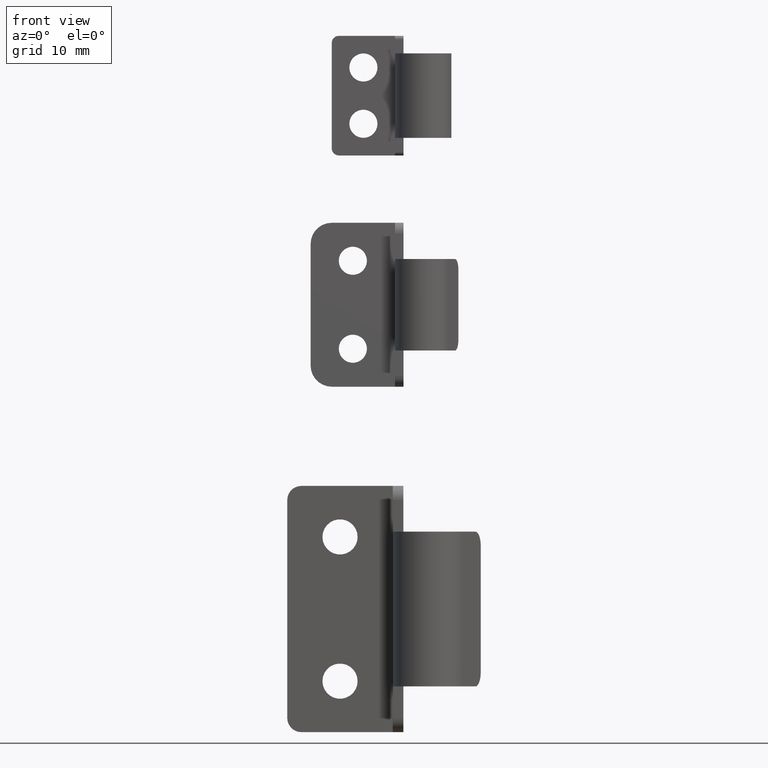
[diagram: clean part render]
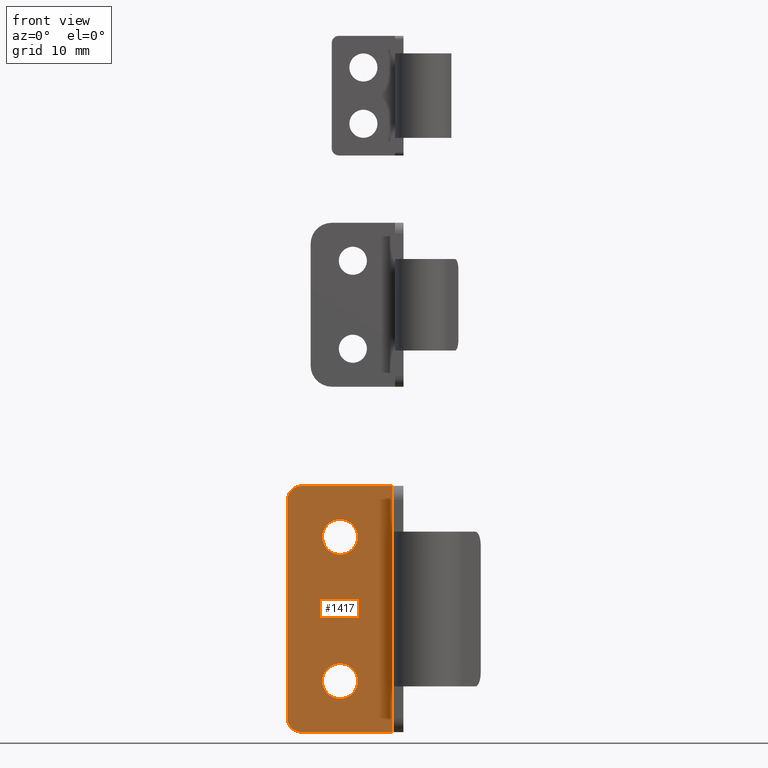
[diagram: same view with one face highlighted and labeled with its STEP entity id]
A machine part, front view. The second image highlights one B-rep face of the part: STEP entity #1417.
In plain terms, the highlighted planar face has unit normal (-0, 1, 0).
Its self-contained STEP definition (entity closure, byte-faithful):
#57=FACE_BOUND('',#241,.T.);
#58=FACE_BOUND('',#242,.T.);
#91=PLANE('',#1541);
#155=FACE_OUTER_BOUND('',#240,.T.);
#240=EDGE_LOOP('',(#1190,#1191,#1192,#1193,#1194,#1195));
#241=EDGE_LOOP('',(#1196));
#242=EDGE_LOOP('',(#1197));
#350=LINE('',#2288,#481);
#355=LINE('',#2302,#486);
#359=LINE('',#2316,#490);
#360=LINE('',#2318,#491);
#481=VECTOR('',#1832,13.);
#486=VECTOR('',#1847,13.);
#490=VECTOR('',#1867,35.);
#491=VECTOR('',#1870,31.);
#573=CIRCLE('',#1529,2.);
#574=CIRCLE('',#1531,2.);
#575=CIRCLE('',#1534,2.5);
#576=CIRCLE('',#1536,2.5);
#679=VERTEX_POINT('',#2285);
#680=VERTEX_POINT('',#2287);
#681=VERTEX_POINT('',#2291);
#682=VERTEX_POINT('',#2295);
#683=VERTEX_POINT('',#2297);
#684=VERTEX_POINT('',#2301);
#685=VERTEX_POINT('',#2305);
#686=VERTEX_POINT('',#2308);
#852=EDGE_CURVE('',#679,#680,#350,.T.);
#854=EDGE_CURVE('',#680,#681,#573,.T.);
#857=EDGE_CURVE('',#682,#683,#574,.T.);
#859=EDGE_CURVE('',#683,#684,#355,.T.);
#861=EDGE_CURVE('',#685,#685,#575,.T.);
#862=EDGE_CURVE('',#686,#686,#576,.T.);
#865=EDGE_CURVE('',#684,#679,#359,.T.);
#866=EDGE_CURVE('',#681,#682,#360,.T.);
#1190=ORIENTED_EDGE('',*,*,#854,.F.);
#1191=ORIENTED_EDGE('',*,*,#852,.F.);
#1192=ORIENTED_EDGE('',*,*,#865,.F.);
#1193=ORIENTED_EDGE('',*,*,#859,.F.);
#1194=ORIENTED_EDGE('',*,*,#857,.F.);
#1195=ORIENTED_EDGE('',*,*,#866,.F.);
#1196=ORIENTED_EDGE('',*,*,#861,.T.);
#1197=ORIENTED_EDGE('',*,*,#862,.T.);
#1417=ADVANCED_FACE('',(#155,#57,#58),#91,.F.);
#1529=AXIS2_PLACEMENT_3D('',#2292,#1836,#1837);
#1531=AXIS2_PLACEMENT_3D('',#2298,#1842,#1843);
#1534=AXIS2_PLACEMENT_3D('',#2306,#1851,#1852);
#1536=AXIS2_PLACEMENT_3D('',#2309,#1855,#1856);
#1541=AXIS2_PLACEMENT_3D('',#2317,#1868,#1869);
#1832=DIRECTION('',(-1.,0.,0.));
#1836=DIRECTION('center_axis',(0.,1.,0.));
#1837=DIRECTION('ref_axis',(-0.707106781186548,0.,-0.707106781186547));
#1842=DIRECTION('center_axis',(0.,1.,0.));
#1843=DIRECTION('ref_axis',(-0.707106781186548,0.,0.707106781186548));
#1847=DIRECTION('',(1.,0.,0.));
#1851=DIRECTION('center_axis',(0.,1.,0.));
#1852=DIRECTION('ref_axis',(-1.,0.,0.));
#1855=DIRECTION('center_axis',(0.,1.,0.));
#1856=DIRECTION('ref_axis',(-1.,0.,0.));
#1867=DIRECTION('',(0.,0.,-1.));
#1868=DIRECTION('center_axis',(0.,1.,0.));
#1869=DIRECTION('ref_axis',(1.,0.,0.));
#1870=DIRECTION('',(1.26882631385732E-16,0.,1.));
#2285=CARTESIAN_POINT('',(-12.5,14.5,0.));
#2287=CARTESIAN_POINT('',(-25.5,14.5,0.));
#2288=CARTESIAN_POINT('',(-13.75,14.5,0.));
#2291=CARTESIAN_POINT('',(-27.5,14.5,2.));
#2292=CARTESIAN_POINT('Origin',(-25.5,14.5,2.));
#2295=CARTESIAN_POINT('',(-27.5,14.5,33.));
#2297=CARTESIAN_POINT('',(-25.5,14.5,35.));
#2298=CARTESIAN_POINT('Origin',(-25.5,14.5,33.));
#2301=CARTESIAN_POINT('',(-12.5,14.5,35.));
#2302=CARTESIAN_POINT('',(-27.5,14.5,35.));
#2305=CARTESIAN_POINT('',(-17.5,14.5,7.25));
#2306=CARTESIAN_POINT('Origin',(-20.,14.5,7.25));
#2308=CARTESIAN_POINT('',(-17.5,14.5,27.75));
#2309=CARTESIAN_POINT('Origin',(-20.,14.5,27.75));
#2316=CARTESIAN_POINT('',(-12.5,14.5,35.));
#2317=CARTESIAN_POINT('Origin',(-27.5,14.5,35.));
#2318=CARTESIAN_POINT('',(-27.5,14.5,17.5));